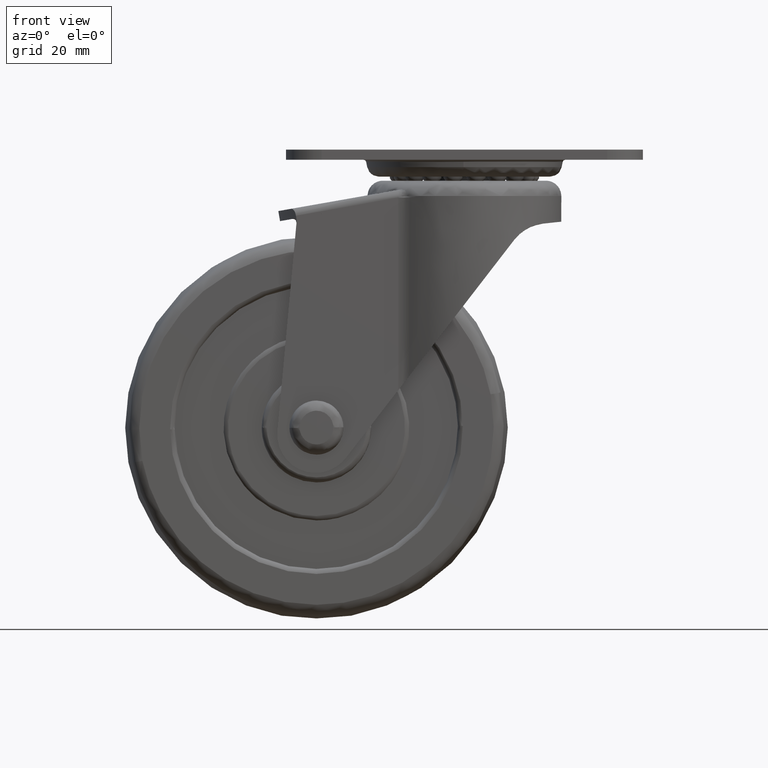
[diagram: clean part render]
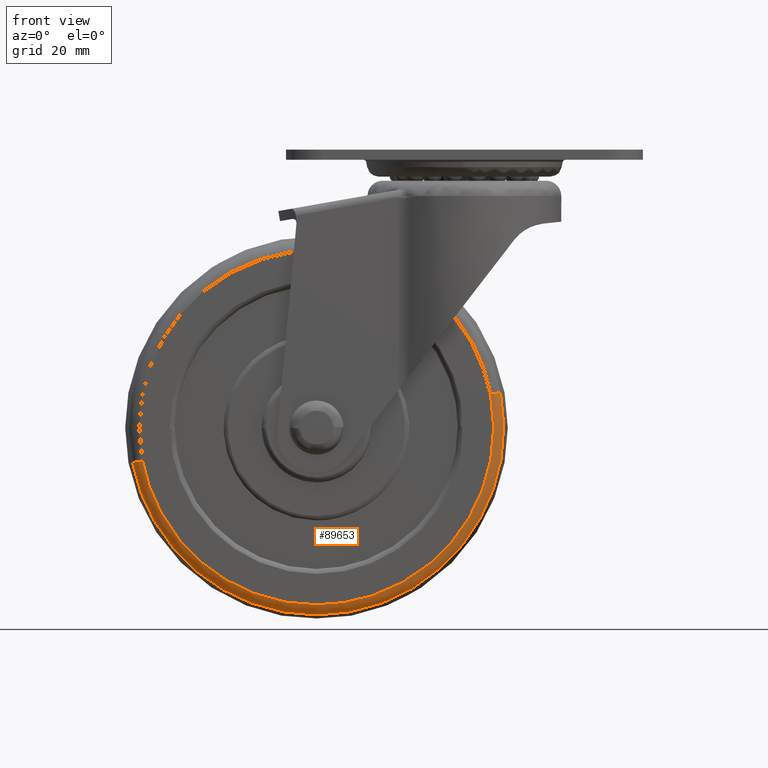
[diagram: same view with one face highlighted and labeled with its STEP entity id]
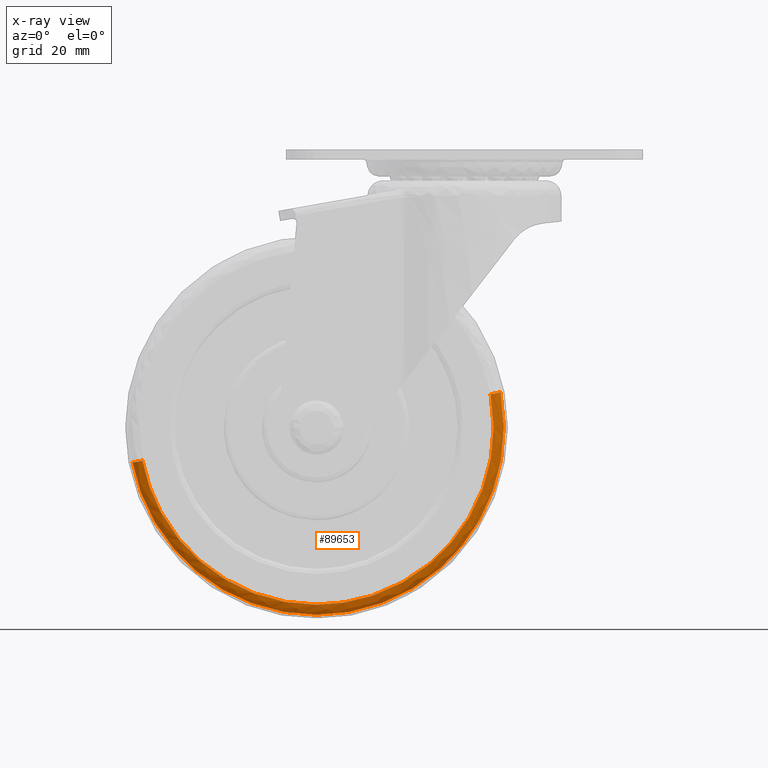
[diagram: x-ray of the same camera — body ghosted, the highlighted face saturated]
A machine part, front view. The second image highlights one B-rep face of the part: STEP entity #89653.
The next image is the same camera in x-ray: the body ghosted, the highlighted face saturated — about 0% of this face is hidden behind the body in this view.
In plain terms, the highlighted face is a freeform B-spline surface patch.
Its self-contained STEP definition (entity closure, byte-faithful):
#89469=CARTESIAN_POINT('',(-36.059571238877233,-8.854141052839481,-6.878695499198086));
#89470=VERTEX_POINT('',#89469);
#89488=CARTESIAN_POINT('',(-34.126036259033121,-10.500000000000000,-6.509889577713194));
#89489=VERTEX_POINT('',#89488);
#89490=CARTESIAN_POINT('',(-34.126036259033121,-10.500000000000000,-6.509889577713194));
#89491=CARTESIAN_POINT('',(-35.768701497984516,-10.499999803922545,-6.823226929739549));
#89492=CARTESIAN_POINT('',(-36.059571238877226,-8.854141052839482,-6.878695499198086));
#89500=(BOUNDED_CURVE()B_SPLINE_CURVE(2,(#89490,#89491,#89492),.UNSPECIFIED.,.F.,.U.)B_SPLINE_CURVE_WITH_KNOTS((3,3),(-1.709144384003597,-0.293151549268137),.UNSPECIFIED.)CURVE()GEOMETRIC_REPRESENTATION_ITEM()RATIONAL_B_SPLINE_CURVE((0.896528474351399,0.687521696442468,0.895851791822081))REPRESENTATION_ITEM(''));
#89501=EDGE_CURVE('',#89489,#89470,#89500,.T.);
#89520=CARTESIAN_POINT('',(34.126036259033128,-10.500000000000000,6.509889577713175));
#89521=VERTEX_POINT('',#89520);
#89535=CARTESIAN_POINT('',(36.059571238875357,-8.854141052850039,6.878695499197711));
#89536=VERTEX_POINT('',#89535);
#89537=CARTESIAN_POINT('',(34.126036259033135,-10.500000000000000,6.509889577713175));
#89538=CARTESIAN_POINT('',(35.768701497975549,-10.499999803922540,6.823226929737821));
#89539=CARTESIAN_POINT('',(36.059571238875364,-8.854141052850039,6.878695499197711));
#89547=(BOUNDED_CURVE()B_SPLINE_CURVE(2,(#89537,#89538,#89539),.UNSPECIFIED.,.F.,.U.)B_SPLINE_CURVE_WITH_KNOTS((3,3),(-1.709144384003594,-0.293151549274055),.UNSPECIFIED.)CURVE()GEOMETRIC_REPRESENTATION_ITEM()RATIONAL_B_SPLINE_CURVE((0.896528474351398,0.687521696443342,0.895851791820340))REPRESENTATION_ITEM(''));
#89548=EDGE_CURVE('',#89521,#89536,#89547,.T.);
#89566=CARTESIAN_POINT('',(34.001764338198939,-10.495994616547359,6.486183440942869));
#89567=CARTESIAN_POINT('',(40.487947779141805,-10.495994616547359,-27.515580897256051));
#89568=CARTESIAN_POINT('',(6.486183440942877,-10.495994616547359,-34.001764338198939));
#89569=CARTESIAN_POINT('',(-27.515580897256051,-10.495994616547359,-40.487947779141820));
#89570=CARTESIAN_POINT('',(-34.001764338198939,-10.495994616547359,-6.486183440942888));
#89571=CARTESIAN_POINT('',(35.864201951443995,-10.616170786251667,6.841462416664962));
#89572=CARTESIAN_POINT('',(42.705664368108970,-10.616170786251667,-29.022739534779038));
#89573=CARTESIAN_POINT('',(6.841462416664970,-10.616170786251667,-35.864201951444009));
#89574=CARTESIAN_POINT('',(-29.022739534779017,-10.616170786251667,-42.705664368108970));
#89575=CARTESIAN_POINT('',(-35.864201951443995,-10.616170786251667,-6.841462416664980));
#89576=CARTESIAN_POINT('',(36.077710655946376,-8.728819597361019,6.882191380311263));
#89577=CARTESIAN_POINT('',(42.959902036257645,-8.728819597361017,-29.195519275635117));
#89578=CARTESIAN_POINT('',(6.882191380311271,-8.728819597361019,-36.077710655946390));
#89579=CARTESIAN_POINT('',(-29.195519275635103,-8.728819597361017,-42.959902036257652));
#89580=CARTESIAN_POINT('',(-36.077710655946376,-8.728819597361019,-6.882191380311280));
#89588=(BOUNDED_SURFACE()B_SPLINE_SURFACE(2,2,((#89566,#89571,#89576),(#89567,#89572,#89577),(#89568,#89573,#89578),(#89569,#89574,#89579),(#89570,#89575,#89580)),.UNSPECIFIED.,.F.,.F.,.U.)B_SPLINE_SURFACE_WITH_KNOTS((3,2,3),(3,3),(0.0,60.853389034539660,121.706778069079310),(0.0,3.193989373438214),.UNSPECIFIED.)GEOMETRIC_REPRESENTATION_ITEM()RATIONAL_B_SPLINE_SURFACE(((0.918449500984322,0.665634432663038,0.917705292527652),(0.649441870323415,0.470674621127294,0.648915635477087),(0.918449500984322,0.665634432663038,0.917705292527652),(0.649441870323415,0.470674621127294,0.648915635477087),(0.918449500984322,0.665634432663038,0.917705292527652)))REPRESENTATION_ITEM('')SURFACE());
#89589=CARTESIAN_POINT('',(0.0,-8.854141030313910,-36.709798001905938));
#89590=VERTEX_POINT('',#89589);
#89591=CARTESIAN_POINT('',(0.0,-8.854141030313910,-36.709798001905938));
#89592=CARTESIAN_POINT('',(-30.369013699194149,-8.854141041565267,-36.709798210519097));
#89593=CARTESIAN_POINT('',(-36.059571238877233,-8.854141052839481,-6.878695499198086));
#89601=(BOUNDED_CURVE()B_SPLINE_CURVE(2,(#89591,#89592,#89593),.UNSPECIFIED.,.F.,.U.)B_SPLINE_CURVE_WITH_KNOTS((3,3),(0.500000000000000,0.717838794632227),.UNSPECIFIED.)CURVE()GEOMETRIC_REPRESENTATION_ITEM()RATIONAL_B_SPLINE_CURVE((1.0,0.744785977030898,0.934336075156441))REPRESENTATION_ITEM(''));
#89602=EDGE_CURVE('',#89590,#89470,#89601,.T.);
#89603=ORIENTED_EDGE('',*,*,#89602,.F.);
#89604=CARTESIAN_POINT('',(36.059571238875357,-8.854141052850039,6.878695499197711));
#89605=CARTESIAN_POINT('',(36.709795824790099,-8.854141051967572,3.470079949701315));
#89606=CARTESIAN_POINT('',(36.709795721415510,-8.854141050901353,0.000000381188104));
#89607=CARTESIAN_POINT('',(36.709794627820919,-8.854141039621860,-36.709797829325964));
#89608=CARTESIAN_POINT('',(0.0,-8.854141030313910,-36.709798001905938));
#89616=(BOUNDED_CURVE()B_SPLINE_CURVE(2,(#89604,#89605,#89606,#89607,#89608),.UNSPECIFIED.,.F.,.U.)B_SPLINE_CURVE_WITH_KNOTS((3,2,3),(0.217838794632182,0.250000000000000,0.500000000000000),.UNSPECIFIED.)CURVE()GEOMETRIC_REPRESENTATION_ITEM()RATIONAL_B_SPLINE_CURVE((0.934336075156363,0.962320804155597,1.0,0.707106781186547,1.0))REPRESENTATION_ITEM(''));
#89617=EDGE_CURVE('',#89536,#89590,#89616,.T.);
#89618=ORIENTED_EDGE('',*,*,#89617,.F.);
#89619=ORIENTED_EDGE('',*,*,#89548,.F.);
#89620=CARTESIAN_POINT('',(0.0,-10.500000000000000,-34.741401999999908));
#89621=VERTEX_POINT('',#89620);
#89622=CARTESIAN_POINT('',(34.126036259033135,-10.500000000000000,6.509889577713175));
#89623=CARTESIAN_POINT('',(34.741402001918900,-10.499999999999998,3.284029383564470));
#89624=CARTESIAN_POINT('',(34.741402001824497,-10.500000000000000,3.480613E-010));
#89625=CARTESIAN_POINT('',(34.741402000825971,-10.500000000000000,-34.741401999842338));
#89626=CARTESIAN_POINT('',(0.0,-10.500000000000000,-34.741401999999908));
#89634=(BOUNDED_CURVE()B_SPLINE_CURVE(2,(#89622,#89623,#89624,#89625,#89626),.UNSPECIFIED.,.F.,.U.)B_SPLINE_CURVE_WITH_KNOTS((3,2,3),(0.217838633740359,0.250000000000000,0.500000000000000),.UNSPECIFIED.)CURVE()GEOMETRIC_REPRESENTATION_ITEM()RATIONAL_B_SPLINE_CURVE((0.934335795160006,0.962320615659101,1.0,0.707106781186547,1.0))REPRESENTATION_ITEM(''));
#89635=EDGE_CURVE('',#89521,#89621,#89634,.T.);
#89636=ORIENTED_EDGE('',*,*,#89635,.T.);
#89637=CARTESIAN_POINT('',(0.0,-10.500000000000000,-34.741401999999908));
#89638=CARTESIAN_POINT('',(-28.740587239332420,-10.500000000000000,-34.741402000190398));
#89639=CARTESIAN_POINT('',(-34.126036259033121,-10.500000000000000,-6.509889577713195));
#89647=(BOUNDED_CURVE()B_SPLINE_CURVE(2,(#89637,#89638,#89639),.UNSPECIFIED.,.F.,.U.)B_SPLINE_CURVE_WITH_KNOTS((3,3),(0.500000000000000,0.717838633740359),.UNSPECIFIED.)CURVE()GEOMETRIC_REPRESENTATION_ITEM()RATIONAL_B_SPLINE_CURVE((1.0,0.744786165527446,0.934335795160006))REPRESENTATION_ITEM(''));
#89648=EDGE_CURVE('',#89621,#89489,#89647,.T.);
#89649=ORIENTED_EDGE('',*,*,#89648,.T.);
#89650=ORIENTED_EDGE('',*,*,#89501,.T.);
#89651=EDGE_LOOP('',(#89603,#89618,#89619,#89636,#89649,#89650));
#89652=FACE_OUTER_BOUND('',#89651,.T.);
#89653=ADVANCED_FACE('',(#89652),#89588,.T.);